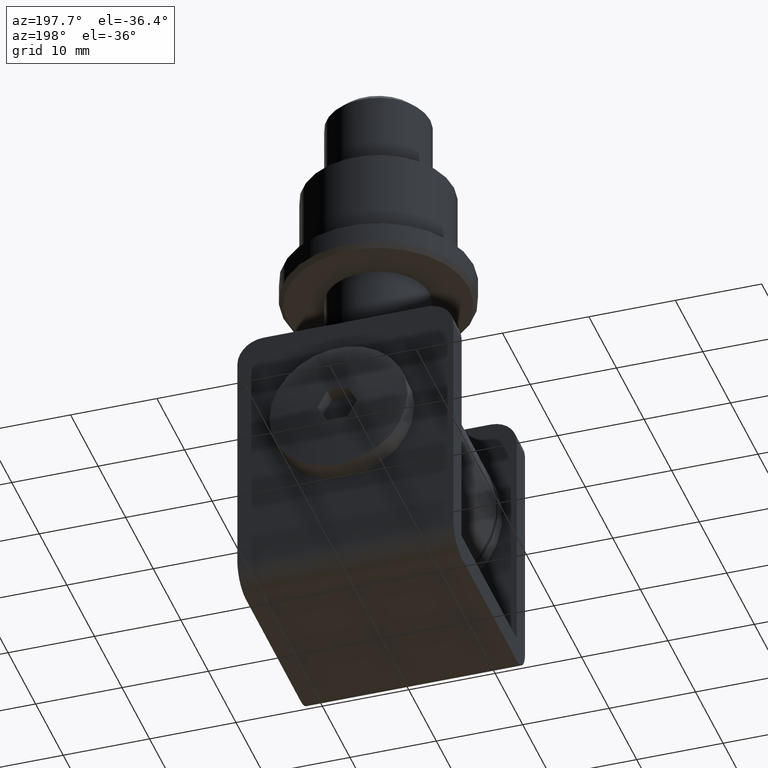
[diagram: clean part render]
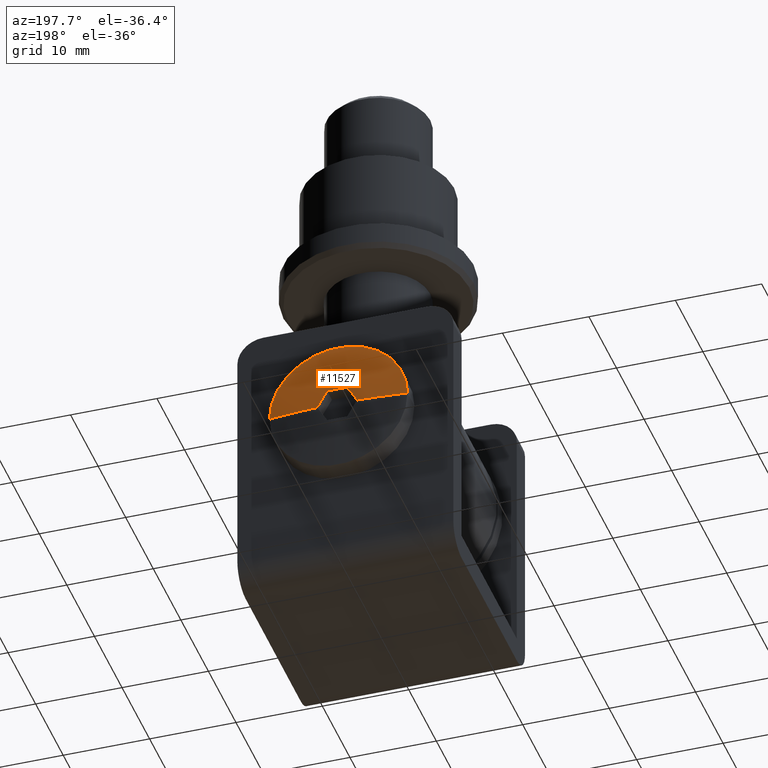
[diagram: same view with one face highlighted and labeled with its STEP entity id]
A machine part, auxiliary view. The second image highlights one B-rep face of the part: STEP entity #11527.
In plain terms, the highlighted spherical surface has radius 64.25 mm.
Its self-contained STEP definition (entity closure, byte-faithful):
#40 = VERTEX_POINT ( 'NONE', #14769 ) ;
#125 = DIRECTION ( 'NONE',  ( 0.8660254037844389297, -0.000000000000000000, -0.4999999999999998890 ) ) ;
#482 = CARTESIAN_POINT ( 'NONE',  ( 1.732050807568882522, -48.24999999999968026, 0.9999999999999970024 ) ) ;
#1239 = CARTESIAN_POINT ( 'NONE',  ( 9.101930117807383152E-15, -48.24999999999968026, 2.000000000000000888 ) ) ;
#1406 = CARTESIAN_POINT ( 'NONE',  ( -1.732050807568872530, -48.24999999999968026, 1.000000000000002665 ) ) ;
#1478 = ORIENTED_EDGE ( 'NONE', *, *, #4306, .F. ) ;
#1884 = CARTESIAN_POINT ( 'NONE',  ( -1.154700538379249020, 15.95848204611807830, 2.000000000000000444 ) ) ;
#2677 = DIRECTION ( 'NONE',  ( 0.4999999999999997780, -8.708887285997888588E-14, 0.8660254037844389297 ) ) ;
#3000 = CARTESIAN_POINT ( 'NONE',  ( 9.477508767491671480E-15, -48.24999999999968026, 0.000000000000000000 ) ) ;
#3128 = EDGE_CURVE ( 'NONE', #7346, #11564, #4655, .T. ) ;
#3182 = DIRECTION ( 'NONE',  ( 1.000000000000000000, 0.000000000000000000, 0.000000000000000000 ) ) ;
#3492 = DIRECTION ( 'NONE',  ( 1.000000000000000000, -8.708887285997891112E-14, 1.890887438026837416E-16 ) ) ;
#3932 = DIRECTION ( 'NONE',  ( 1.000000000000000000, 0.000000000000000000, -1.224646799147352961E-16 ) ) ;
#4181 = EDGE_CURVE ( 'NONE', #11564, #5920, #6659, .T. ) ;
#4280 = CIRCLE ( 'NONE', #5561, 64.21886405099330375 ) ;
#4306 = EDGE_CURVE ( 'NONE', #11739, #7346, #4280, .T. ) ;
#4655 = CIRCLE ( 'NONE', #4665, 64.21886405099330375 ) ;
#4665 = AXIS2_PLACEMENT_3D ( 'NONE', #482, #10943, #9707 ) ;
#4824 = CARTESIAN_POINT ( 'NONE',  ( 8.000000000000001776, 15.50000000000001421, 0.000000000000000000 ) ) ;
#5108 = EDGE_CURVE ( 'NONE', #7632, #40, #6282, .T. ) ;
#5561 = AXIS2_PLACEMENT_3D ( 'NONE', #1239, #7121, #3492 ) ;
#5826 = ORIENTED_EDGE ( 'NONE', *, *, #5108, .T. ) ;
#5920 = VERTEX_POINT ( 'NONE', #4824 ) ;
#6079 = CARTESIAN_POINT ( 'NONE',  ( 2.309401076758505589, 15.95848204611807830, 6.505213034913026604E-16 ) ) ;
#6282 = CIRCLE ( 'NONE', #12253, 64.24999999999970157 ) ;
#6346 = FACE_OUTER_BOUND ( 'NONE', #8873, .T. ) ;
#6429 = ORIENTED_EDGE ( 'NONE', *, *, #4181, .F. ) ;
#6564 = EDGE_CURVE ( 'NONE', #7632, #11739, #12634, .T. ) ;
#6659 = CIRCLE ( 'NONE', #9750, 64.24999999999970157 ) ;
#7003 = CARTESIAN_POINT ( 'NONE',  ( 1.154700538379255015, 15.95848204611807830, 2.000000000000000444 ) ) ;
#7020 = ORIENTED_EDGE ( 'NONE', *, *, #6564, .F. ) ;
#7121 = DIRECTION ( 'NONE',  ( 1.877893248421448296E-16, -0.000000000000000000, -1.000000000000000000 ) ) ;
#7346 = VERTEX_POINT ( 'NONE', #7003 ) ;
#7632 = VERTEX_POINT ( 'NONE', #14904 ) ;
#7774 = DIRECTION ( 'NONE',  ( 0.000000000000000000, 0.000000000000000000, -1.000000000000000000 ) ) ;
#8351 = AXIS2_PLACEMENT_3D ( 'NONE', #13626, #10209, #3182 ) ;
#8513 = DIRECTION ( 'NONE',  ( 1.224646799147353207E-16, -1.207502093420638320E-32, 1.000000000000000000 ) ) ;
#8814 = AXIS2_PLACEMENT_3D ( 'NONE', #1406, #125, #2677 ) ;
#8873 = EDGE_LOOP ( 'NONE', ( #7020, #5826, #14751, #6429, #11869, #1478 ) ) ;
#8984 = CIRCLE ( 'NONE', #8351, 7.999999999999998224 ) ;
#9626 = DIRECTION ( 'NONE',  ( -0.000000000000000000, 0.000000000000000000, 1.000000000000000000 ) ) ;
#9707 = DIRECTION ( 'NONE',  ( 0.4999999999999997780, -8.708887285997891112E-14, -0.8660254037844388186 ) ) ;
#9750 = AXIS2_PLACEMENT_3D ( 'NONE', #3000, #7774, #13546 ) ;
#10209 = DIRECTION ( 'NONE',  ( -9.860002853568459598E-17, -1.000000000000000000, -0.000000000000000000 ) ) ;
#10943 = DIRECTION ( 'NONE',  ( -0.8660254037844387076, -0.000000000000000000, -0.4999999999999998335 ) ) ;
#10974 = CARTESIAN_POINT ( 'NONE',  ( 9.477508767491671480E-15, -48.24999999999968026, 0.000000000000000000 ) ) ;
#11284 = SPHERICAL_SURFACE ( 'NONE', #13383, 64.24999999999970157 ) ;
#11527 = ADVANCED_FACE ( 'NONE', ( #6346 ), #11284, .T. ) ;
#11564 = VERTEX_POINT ( 'NONE', #6079 ) ;
#11739 = VERTEX_POINT ( 'NONE', #1884 ) ;
#11796 = CARTESIAN_POINT ( 'NONE',  ( 9.477508767491671480E-15, -48.24999999999968026, 0.000000000000000000 ) ) ;
#11869 = ORIENTED_EDGE ( 'NONE', *, *, #3128, .F. ) ;
#12253 = AXIS2_PLACEMENT_3D ( 'NONE', #10974, #8513, #3932 ) ;
#12634 = CIRCLE ( 'NONE', #8814, 64.21886405099331796 ) ;
#12983 = DIRECTION ( 'NONE',  ( 1.000000000000000000, -1.079983486989457049E-16, 0.000000000000000000 ) ) ;
#13383 = AXIS2_PLACEMENT_3D ( 'NONE', #11796, #9626, #12983 ) ;
#13546 = DIRECTION ( 'NONE',  ( -1.000000000000000000, 0.000000000000000000, 0.000000000000000000 ) ) ;
#13626 = CARTESIAN_POINT ( 'NONE',  ( 1.528300442303112667E-15, 15.50000000000001421, 0.000000000000000000 ) ) ;
#14315 = EDGE_CURVE ( 'NONE', #5920, #40, #8984, .T. ) ;
#14751 = ORIENTED_EDGE ( 'NONE', *, *, #14315, .F. ) ;
#14769 = CARTESIAN_POINT ( 'NONE',  ( -7.999999999999984901, 15.50000000000001421, 9.797174393178825657E-16 ) ) ;
#14904 = CARTESIAN_POINT ( 'NONE',  ( -2.309401076758500260, 15.95848204611807830, -6.505213034913026604E-16 ) ) ;